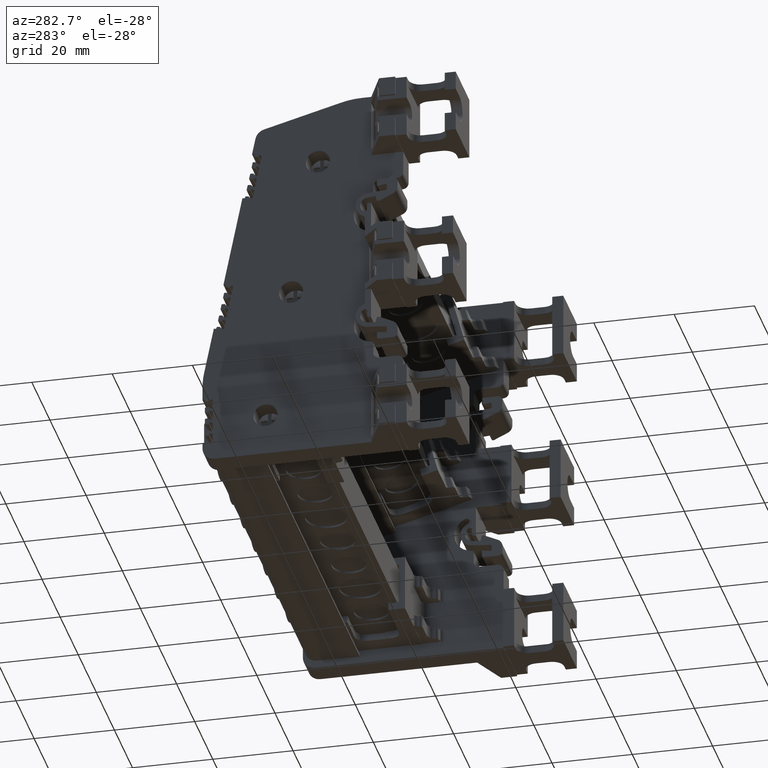
[diagram: clean part render]
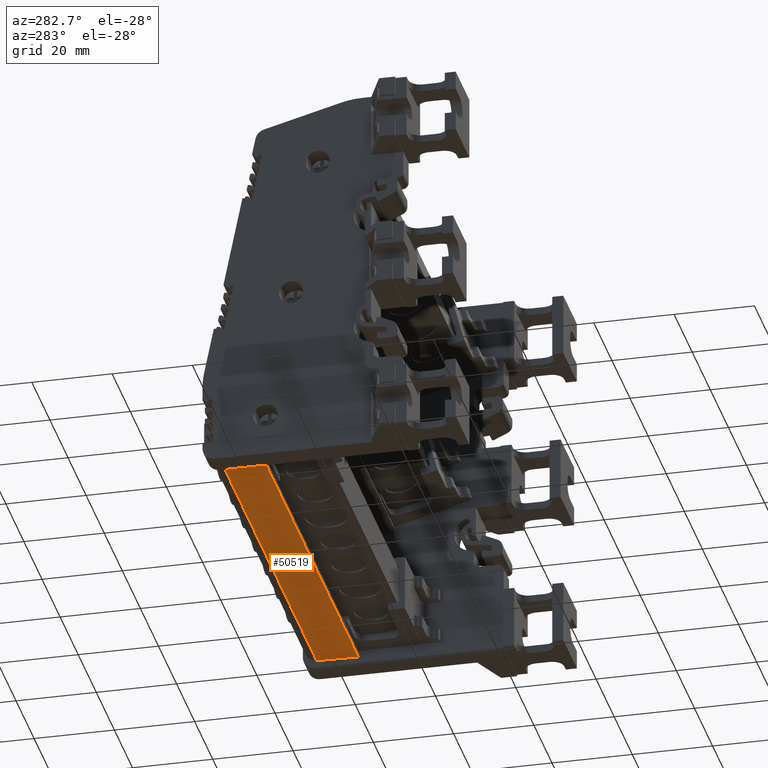
[diagram: same view with one face highlighted and labeled with its STEP entity id]
A machine part, auxiliary view. The second image highlights one B-rep face of the part: STEP entity #50519.
In plain terms, the highlighted planar face has unit normal (0, 0.0175, -0.9998).
Its self-contained STEP definition (entity closure, byte-faithful):
#3808 = EDGE_LOOP ( 'NONE', ( #80972, #81015, #81025, #81003 ) ) ;
#4072 = VECTOR ( 'NONE', #17168, 1000.000000000000200 ) ;
#16699 = LINE ( 'NONE', #16738, #81803 ) ;
#16718 = DIRECTION ( 'NONE',  ( -1.000000000000000000, 9.816221875545171200E-015, -4.619041198555339300E-015 ) ) ;
#16738 = CARTESIAN_POINT ( 'NONE',  ( 43.67005696747221300, 285.9330914790333500, -42.67060326393571800 ) ) ;
#17144 = CARTESIAN_POINT ( 'NONE',  ( -60.79994303252783500, 275.5684270365141500, -42.85152352664760400 ) ) ;
#17168 = DIRECTION ( 'NONE',  ( 9.371236174438441000E-015, 0.9998476877969636500, 0.01745282805351013000 ) ) ;
#17180 = LINE ( 'NONE', #17144, #4072 ) ;
#32597 = AXIS2_PLACEMENT_3D ( 'NONE', #58262, #58282, #58299 ) ;
#33202 = CARTESIAN_POINT ( 'NONE',  ( -60.79994303252783500, 275.5684270065390300, -42.85152352717084100 ) ) ;
#33289 = CARTESIAN_POINT ( 'NONE',  ( 43.67005696747217800, 275.5684270065386300, -42.85152352717034300 ) ) ;
#33314 = CARTESIAN_POINT ( 'NONE',  ( 43.67005696747224200, 285.9330914790332900, -42.67060326393571000 ) ) ;
#45245 = CARTESIAN_POINT ( 'NONE',  ( -60.79994303252777900, 285.9330914790342600, -42.67060326393619400 ) ) ;
#50519 = ADVANCED_FACE ( 'NONE', ( #58269 ), #58330, .T. ) ;
#55354 = EDGE_CURVE ( 'NONE', #85490, #83179, #16699, .T. ) ;
#55531 = EDGE_CURVE ( 'NONE', #85545, #83179, #17180, .T. ) ;
#58262 = CARTESIAN_POINT ( 'NONE',  ( 43.67005696747214900, 276.7541174446556600, -42.83082672345342700 ) ) ;
#58269 = FACE_OUTER_BOUND ( 'NONE', #3808, .T. ) ;
#58282 = DIRECTION ( 'NONE',  ( 4.789658494642638200E-015, 0.01745282805351111900, -0.9998476877969637600 ) ) ;
#58299 = DIRECTION ( 'NONE',  ( 0.0000000000000000000, 0.9998476877969636500, 0.01745282805351111600 ) ) ;
#58330 = PLANE ( 'NONE',  #32597 ) ;
#72369 = EDGE_CURVE ( 'NONE', #85490, #85462, #91965, .T. ) ;
#72372 = EDGE_CURVE ( 'NONE', #85462, #85545, #91981, .T. ) ;
#80972 = ORIENTED_EDGE ( 'NONE', *, *, #55531, .T. ) ;
#81003 = ORIENTED_EDGE ( 'NONE', *, *, #72372, .T. ) ;
#81015 = ORIENTED_EDGE ( 'NONE', *, *, #55354, .F. ) ;
#81025 = ORIENTED_EDGE ( 'NONE', *, *, #72369, .T. ) ;
#81803 = VECTOR ( 'NONE', #16718, 1000.000000000000000 ) ;
#83179 = VERTEX_POINT ( 'NONE', #45245 ) ;
#85462 = VERTEX_POINT ( 'NONE', #33289 ) ;
#85490 = VERTEX_POINT ( 'NONE', #33314 ) ;
#85545 = VERTEX_POINT ( 'NONE', #33202 ) ;
#91960 = CARTESIAN_POINT ( 'NONE',  ( 43.67005696747214900, 275.5684270365136400, -42.85152352664711400 ) ) ;
#91965 = LINE ( 'NONE', #91986, #94269 ) ;
#91979 = DIRECTION ( 'NONE',  ( -0.0000000000000000000, -0.9998476877969636500, -0.01745282805351111600 ) ) ;
#91981 = LINE ( 'NONE', #91960, #94275 ) ;
#91982 = DIRECTION ( 'NONE',  ( -1.000000000000000000, 8.359308614203685900E-017, -4.788928971205527500E-015 ) ) ;
#91986 = CARTESIAN_POINT ( 'NONE',  ( 43.67005696747224200, 276.7541174446556600, -42.83082672345342700 ) ) ;
#94269 = VECTOR ( 'NONE', #91979, 1000.000000000000100 ) ;
#94275 = VECTOR ( 'NONE', #91982, 1000.000000000000000 ) ;